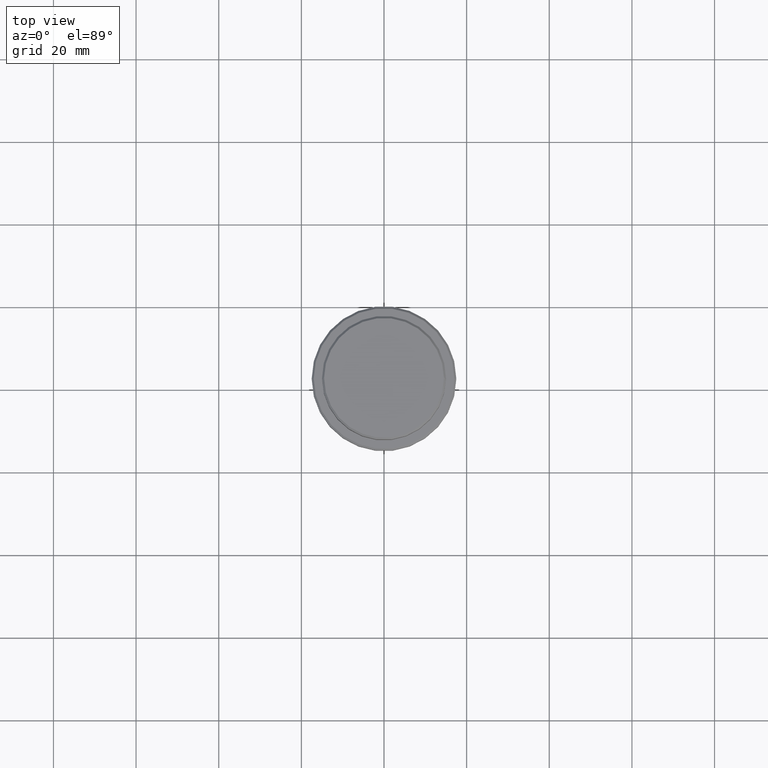
[diagram: clean part render]
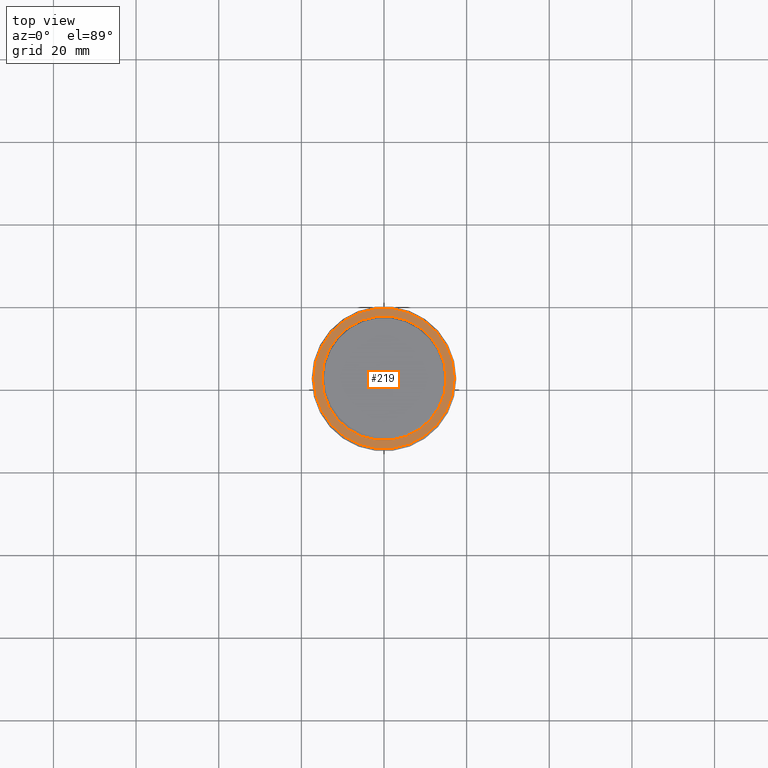
[diagram: same view with one face highlighted and labeled with its STEP entity id]
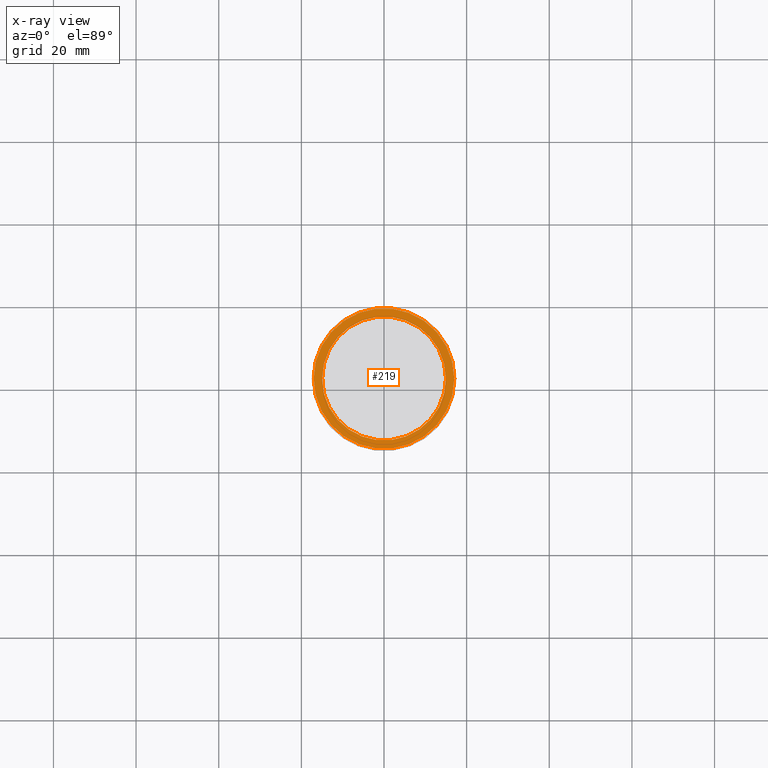
[diagram: x-ray of the same camera — body ghosted, the highlighted face saturated]
A machine part, top view. The second image highlights one B-rep face of the part: STEP entity #219.
The next image is the same camera in x-ray: the body ghosted, the highlighted face saturated — about 0% of this face is hidden behind the body in this view.
In plain terms, the highlighted planar face has unit normal (0, -0, 1).
Its self-contained STEP definition (entity closure, byte-faithful):
#26 = DIRECTION ( 'NONE',  ( 0.000000000000000000, -0.000000000000000000, 1.000000000000000000 ) ) ;
#34 = ORIENTED_EDGE ( 'NONE', *, *, #1261, .T. ) ;
#53 = DIRECTION ( 'NONE',  ( 0.000000000000000000, 0.000000000000000000, -1.000000000000000000 ) ) ;
#107 = CARTESIAN_POINT ( 'NONE',  ( 0.000000000000000000, 0.000000000000000000, -9.000000000000000000 ) ) ;
#128 = DIRECTION ( 'NONE',  ( 1.000000000000000000, 0.000000000000000000, 0.000000000000000000 ) ) ;
#146 = DIRECTION ( 'NONE',  ( 1.000000000000000000, 0.000000000000000000, 0.000000000000000000 ) ) ;
#219 = ADVANCED_FACE ( 'NONE', ( #577, #1329 ), #450, .T. ) ;
#259 = CARTESIAN_POINT ( 'NONE',  ( 0.000000000000000000, 0.000000000000000000, -9.000000000000000000 ) ) ;
#269 = CARTESIAN_POINT ( 'NONE',  ( 17.00000000000001421, 2.112515728529185250E-15, -9.000000000000000000 ) ) ;
#364 = VERTEX_POINT ( 'NONE', #269 ) ;
#388 = DIRECTION ( 'NONE',  ( -0.000000000000000000, -0.000000000000000000, 1.000000000000000000 ) ) ;
#399 = AXIS2_PLACEMENT_3D ( 'NONE', #1036, #53, #1154 ) ;
#450 = PLANE ( 'NONE',  #1087 ) ;
#542 = DIRECTION ( 'NONE',  ( -0.000000000000000000, -0.000000000000000000, 1.000000000000000000 ) ) ;
#551 = EDGE_CURVE ( 'NONE', #1360, #364, #730, .T. ) ;
#563 = EDGE_LOOP ( 'NONE', ( #1247, #983 ) ) ;
#577 = FACE_OUTER_BOUND ( 'NONE', #563, .T. ) ;
#629 = DIRECTION ( 'NONE',  ( 0.000000000000000000, 0.000000000000000000, -1.000000000000000000 ) ) ;
#657 = ORIENTED_EDGE ( 'NONE', *, *, #891, .T. ) ;
#668 = DIRECTION ( 'NONE',  ( 1.000000000000000000, 0.000000000000000000, 0.000000000000000000 ) ) ;
#697 = VERTEX_POINT ( 'NONE', #1109 ) ;
#724 = CARTESIAN_POINT ( 'NONE',  ( -17.00000000000001421, 0.000000000000000000, -9.000000000000000000 ) ) ;
#730 = CIRCLE ( 'NONE', #1322, 17.00000000000001421 ) ;
#813 = EDGE_CURVE ( 'NONE', #364, #1360, #1365, .T. ) ;
#861 = CARTESIAN_POINT ( 'NONE',  ( -14.99999999999999289, 1.836970198721028800E-15, -9.000000000000000000 ) ) ;
#882 = CARTESIAN_POINT ( 'NONE',  ( 0.000000000000000000, 14.49999999999999467, -9.000000000000000000 ) ) ;
#891 = EDGE_CURVE ( 'NONE', #974, #697, #934, .T. ) ;
#934 = CIRCLE ( 'NONE', #1230, 14.99999999999999289 ) ;
#965 = CARTESIAN_POINT ( 'NONE',  ( 0.000000000000000000, 0.000000000000000000, -9.000000000000000000 ) ) ;
#974 = VERTEX_POINT ( 'NONE', #861 ) ;
#983 = ORIENTED_EDGE ( 'NONE', *, *, #813, .T. ) ;
#1007 = AXIS2_PLACEMENT_3D ( 'NONE', #259, #388, #146 ) ;
#1036 = CARTESIAN_POINT ( 'NONE',  ( 0.000000000000000000, 0.000000000000000000, -9.000000000000000000 ) ) ;
#1062 = DIRECTION ( 'NONE',  ( 1.000000000000000000, 0.000000000000000000, 0.000000000000000000 ) ) ;
#1087 = AXIS2_PLACEMENT_3D ( 'NONE', #882, #26, #668 ) ;
#1109 = CARTESIAN_POINT ( 'NONE',  ( 14.99999999999999289, 0.000000000000000000, -9.000000000000000000 ) ) ;
#1154 = DIRECTION ( 'NONE',  ( 1.000000000000000000, 0.000000000000000000, 0.000000000000000000 ) ) ;
#1211 = CIRCLE ( 'NONE', #399, 14.99999999999999289 ) ;
#1230 = AXIS2_PLACEMENT_3D ( 'NONE', #965, #629, #1062 ) ;
#1247 = ORIENTED_EDGE ( 'NONE', *, *, #551, .T. ) ;
#1261 = EDGE_CURVE ( 'NONE', #697, #974, #1211, .T. ) ;
#1317 = EDGE_LOOP ( 'NONE', ( #34, #657 ) ) ;
#1322 = AXIS2_PLACEMENT_3D ( 'NONE', #107, #542, #128 ) ;
#1329 = FACE_BOUND ( 'NONE', #1317, .T. ) ;
#1360 = VERTEX_POINT ( 'NONE', #724 ) ;
#1365 = CIRCLE ( 'NONE', #1007, 17.00000000000001421 ) ;